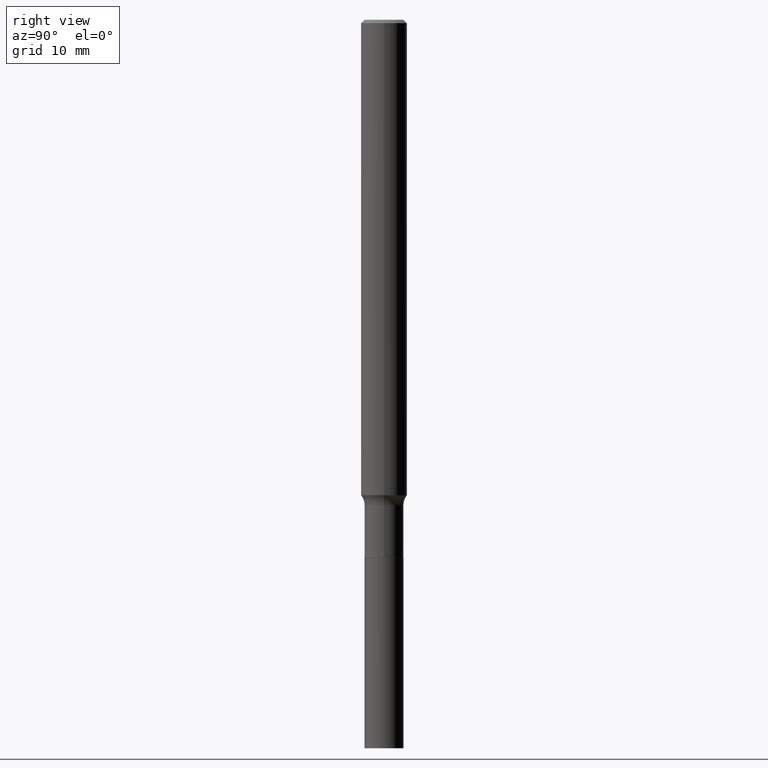
[diagram: clean part render]
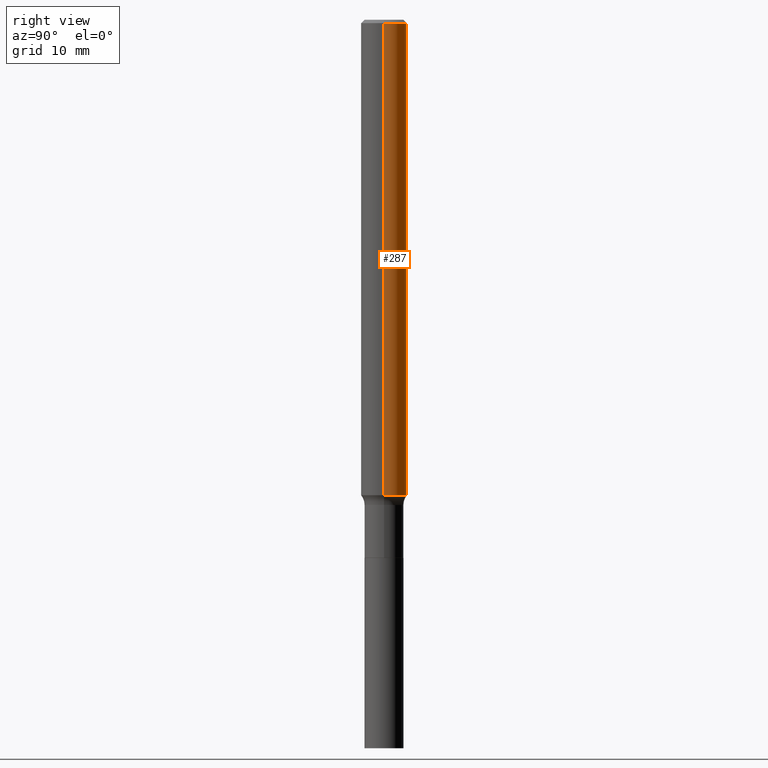
[diagram: same view with one face highlighted and labeled with its STEP entity id]
A machine part, right view. The second image highlights one B-rep face of the part: STEP entity #287.
In plain terms, the highlighted cylindrical surface (edge-blend (fillet) strip) has radius 2.9997 mm, axis along (-0, 0, 1).
Its self-contained STEP definition (entity closure, byte-faithful):
#10 = EDGE_LOOP ( 'NONE', ( #435, #31, #326, #206 ) ) ;
#31 = ORIENTED_EDGE ( 'NONE', *, *, #329, .T. ) ;
#40 = AXIS2_PLACEMENT_3D ( 'NONE', #411, #232, #196 ) ;
#43 = CARTESIAN_POINT ( 'NONE',  ( 0.1181000000000000105, -8.865394841523548556E-16, -0.01771500000000011607 ) ) ;
#95 = CIRCLE ( 'NONE', #40, 0.1181000000000000105 ) ;
#96 = CARTESIAN_POINT ( 'NONE',  ( -0.1181000000000001632, 8.391509709326794790E-16, -5.809262341591051491E-30 ) ) ;
#100 = FACE_OUTER_BOUND ( 'NONE', #10, .T. ) ;
#111 = DIRECTION ( 'NONE',  ( -2.445468806185136877E-29, 3.491481338843145188E-15, 1.000000000000000000 ) ) ;
#121 = CARTESIAN_POINT ( 'NONE',  ( -0.1181000000000003020, -7.683252086848746788E-15, -2.440913248760255172 ) ) ;
#156 = DIRECTION ( 'NONE',  ( -2.445468806185136597E-29, 3.491481338843145583E-15, 1.000000000000000000 ) ) ;
#166 = DIRECTION ( 'NONE',  ( -2.445468806185136597E-29, 3.491481338843145583E-15, 1.000000000000000000 ) ) ;
#169 = CARTESIAN_POINT ( 'NONE',  ( 0.000000000000000000, 0.000000000000000000, 0.000000000000000000 ) ) ;
#181 = LINE ( 'NONE', #324, #286 ) ;
#196 = DIRECTION ( 'NONE',  ( 1.000000000000000000, -6.982962677686267499E-15, 0.000000000000000000 ) ) ;
#206 = ORIENTED_EDGE ( 'NONE', *, *, #433, .F. ) ;
#211 = CYLINDRICAL_SURFACE ( 'NONE', #393, 0.1181000000000001632 ) ;
#213 = VECTOR ( 'NONE', #279, 39.37007874015748143 ) ;
#232 = DIRECTION ( 'NONE',  ( -2.445468806185136597E-29, 3.491481338843145583E-15, 1.000000000000000000 ) ) ;
#239 = EDGE_CURVE ( 'NONE', #365, #242, #254, .T. ) ;
#242 = VERTEX_POINT ( 'NONE', #121 ) ;
#248 = EDGE_CURVE ( 'NONE', #409, #274, #95, .T. ) ;
#254 = CIRCLE ( 'NONE', #321, 0.1181000000000003020 ) ;
#274 = VERTEX_POINT ( 'NONE', #388 ) ;
#279 = DIRECTION ( 'NONE',  ( -2.445468806185136877E-29, 3.491481338843145188E-15, 1.000000000000000000 ) ) ;
#284 = CARTESIAN_POINT ( 'NONE',  ( 0.1181000000000003020, -9.347090950016178769E-15, -2.440913248760255172 ) ) ;
#286 = VECTOR ( 'NONE', #111, 39.37007874015748143 ) ;
#287 = ADVANCED_FACE ( 'NONE', ( #100 ), #211, .T. ) ;
#304 = CARTESIAN_POINT ( 'NONE',  ( 5.969177208447224708E-29, -8.522403057781427351E-15, -2.440913248760255172 ) ) ;
#321 = AXIS2_PLACEMENT_3D ( 'NONE', #304, #156, #447 ) ;
#324 = CARTESIAN_POINT ( 'NONE',  ( 0.1181000000000001632, -8.246878922347493473E-16, 5.758764772215008848E-30 ) ) ;
#326 = ORIENTED_EDGE ( 'NONE', *, *, #248, .F. ) ;
#329 = EDGE_CURVE ( 'NONE', #242, #274, #424, .T. ) ;
#355 = DIRECTION ( 'NONE',  ( 1.000000000000000000, -6.982962677686267499E-15, 4.876176775795936353E-29 ) ) ;
#365 = VERTEX_POINT ( 'NONE', #284 ) ;
#388 = CARTESIAN_POINT ( 'NONE',  ( -0.1181000000000000105, -3.452976353916835028E-15, -0.01771500000000011607 ) ) ;
#393 = AXIS2_PLACEMENT_3D ( 'NONE', #169, #166, #355 ) ;
#409 = VERTEX_POINT ( 'NONE', #43 ) ;
#411 = CARTESIAN_POINT ( 'NONE',  ( 4.332147990156997620E-31, -6.185159191760672860E-17, -0.01771500000000011607 ) ) ;
#424 = LINE ( 'NONE', #96, #213 ) ;
#433 = EDGE_CURVE ( 'NONE', #365, #409, #181, .T. ) ;
#435 = ORIENTED_EDGE ( 'NONE', *, *, #239, .T. ) ;
#447 = DIRECTION ( 'NONE',  ( 1.000000000000000000, -6.982962677686271444E-15, 0.000000000000000000 ) ) ;